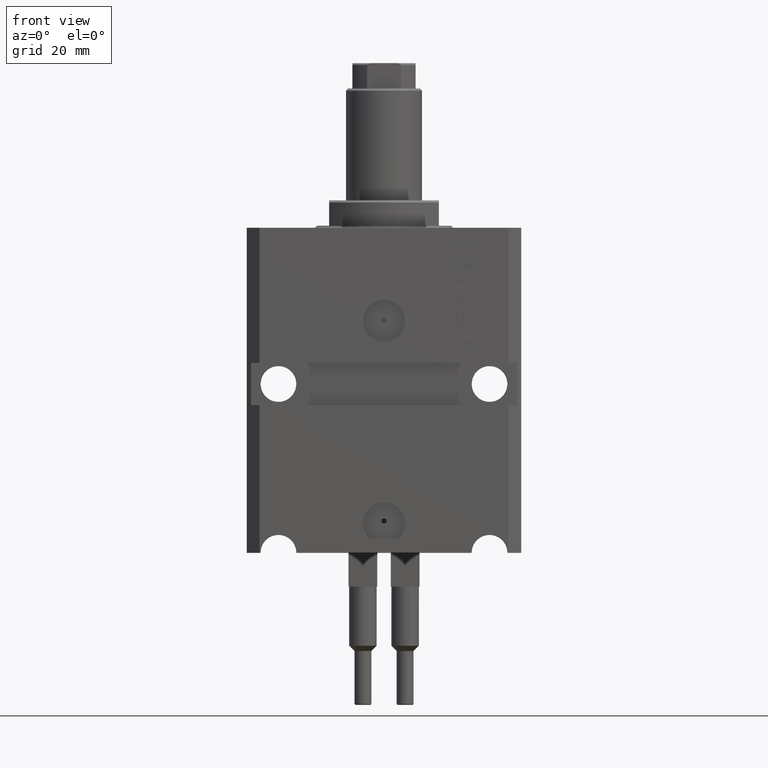
[diagram: clean part render]
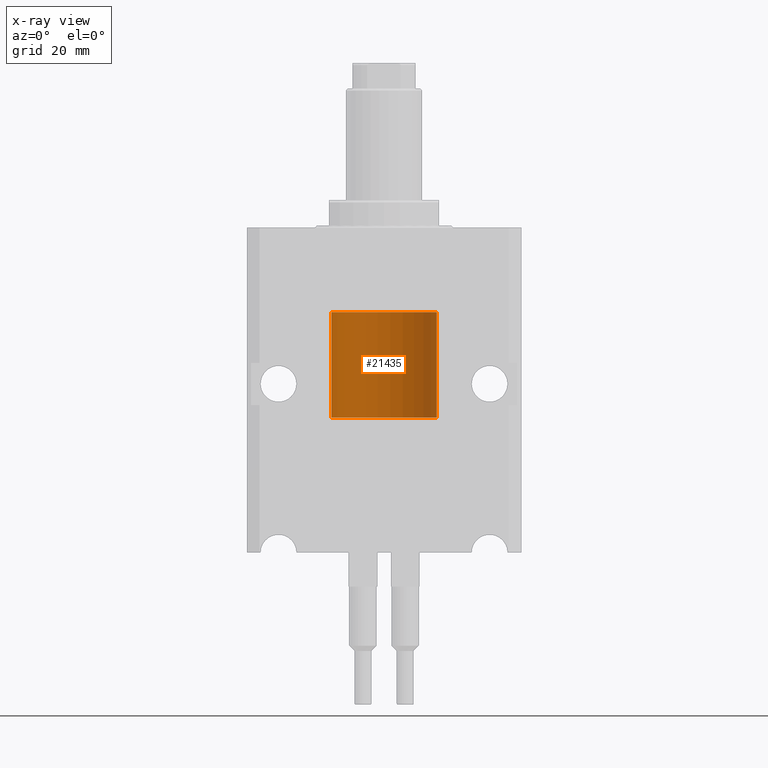
[diagram: x-ray — body ghosted, one internal face saturated and labeled with its STEP entity id]
A machine part, front view, then the same camera in x-ray: the body is ghosted and one INTERNAL B-rep face — a face not visible from any outside direction — is saturated and labeled: STEP entity #21435.
In plain terms, the highlighted cylindrical surface (partial cylindrical patch) has radius 12.5 mm, axis along (-0, -0, -1).
Its self-contained STEP definition (entity closure, byte-faithful):
#2439 = EDGE_CURVE ( 'NONE', #28003, #27764, #12250, .T. ) ;
#2969 = VERTEX_POINT ( 'NONE', #28670 ) ;
#3021 = CARTESIAN_POINT ( 'NONE',  ( -12.50000000000000000, 0.000000000000000000, 0.000000000000000000 ) ) ;
#10274 = EDGE_LOOP ( 'NONE', ( #14824, #28507, #16028, #36499 ) ) ;
#10447 = CARTESIAN_POINT ( 'NONE',  ( 12.50000000000000000, 1.530808498934191521E-15, 25.00000000000000000 ) ) ;
#11169 = CIRCLE ( 'NONE', #24336, 12.50000000000000000 ) ;
#11802 = CARTESIAN_POINT ( 'NONE',  ( -12.50000000000000000, 0.000000000000000000, 25.00000000000000000 ) ) ;
#11948 = FACE_OUTER_BOUND ( 'NONE', #10274, .T. ) ;
#12168 = CYLINDRICAL_SURFACE ( 'NONE', #26522, 12.50000000000000000 ) ;
#12250 = LINE ( 'NONE', #11802, #38550 ) ;
#12390 = DIRECTION ( 'NONE',  ( -1.000000000000000000, 0.000000000000000000, 0.000000000000000000 ) ) ;
#12557 = CARTESIAN_POINT ( 'NONE',  ( 0.000000000000000000, 0.000000000000000000, 0.000000000000000000 ) ) ;
#13572 = CARTESIAN_POINT ( 'NONE',  ( 12.50000000000000000, 1.530808498934191521E-15, 0.000000000000000000 ) ) ;
#14824 = ORIENTED_EDGE ( 'NONE', *, *, #43496, .F. ) ;
#14872 = CARTESIAN_POINT ( 'NONE',  ( -12.50000000000000000, 0.000000000000000000, 25.00000000000000000 ) ) ;
#15767 = DIRECTION ( 'NONE',  ( 1.000000000000000000, 0.000000000000000000, 0.000000000000000000 ) ) ;
#16028 = ORIENTED_EDGE ( 'NONE', *, *, #20695, .T. ) ;
#19210 = EDGE_CURVE ( 'NONE', #2969, #42039, #24880, .T. ) ;
#20695 = EDGE_CURVE ( 'NONE', #42039, #27764, #11169, .T. ) ;
#21435 = ADVANCED_FACE ( 'NONE', ( #11948 ), #12168, .T. ) ;
#22250 = CARTESIAN_POINT ( 'NONE',  ( 0.000000000000000000, 0.000000000000000000, 25.00000000000000000 ) ) ;
#22629 = DIRECTION ( 'NONE',  ( 0.000000000000000000, 0.000000000000000000, 1.000000000000000000 ) ) ;
#24336 = AXIS2_PLACEMENT_3D ( 'NONE', #12557, #22629, #15767 ) ;
#24880 = LINE ( 'NONE', #10447, #35992 ) ;
#25701 = DIRECTION ( 'NONE',  ( -0.000000000000000000, -0.000000000000000000, -1.000000000000000000 ) ) ;
#26522 = AXIS2_PLACEMENT_3D ( 'NONE', #22250, #25701, #12390 ) ;
#27764 = VERTEX_POINT ( 'NONE', #3021 ) ;
#28003 = VERTEX_POINT ( 'NONE', #14872 ) ;
#28094 = DIRECTION ( 'NONE',  ( -0.000000000000000000, -0.000000000000000000, -1.000000000000000000 ) ) ;
#28507 = ORIENTED_EDGE ( 'NONE', *, *, #19210, .T. ) ;
#28670 = CARTESIAN_POINT ( 'NONE',  ( 12.50000000000000000, 1.530808498934191521E-15, 25.00000000000000000 ) ) ;
#32647 = DIRECTION ( 'NONE',  ( -0.000000000000000000, -0.000000000000000000, -1.000000000000000000 ) ) ;
#34767 = CARTESIAN_POINT ( 'NONE',  ( 0.000000000000000000, 0.000000000000000000, 25.00000000000000000 ) ) ;
#35992 = VECTOR ( 'NONE', #28094, 1000.000000000000000 ) ;
#36499 = ORIENTED_EDGE ( 'NONE', *, *, #2439, .F. ) ;
#37319 = AXIS2_PLACEMENT_3D ( 'NONE', #34767, #44645, #37753 ) ;
#37753 = DIRECTION ( 'NONE',  ( 1.000000000000000000, 0.000000000000000000, 0.000000000000000000 ) ) ;
#38550 = VECTOR ( 'NONE', #32647, 1000.000000000000000 ) ;
#42039 = VERTEX_POINT ( 'NONE', #13572 ) ;
#43496 = EDGE_CURVE ( 'NONE', #2969, #28003, #43910, .T. ) ;
#43910 = CIRCLE ( 'NONE', #37319, 12.50000000000000000 ) ;
#44645 = DIRECTION ( 'NONE',  ( 0.000000000000000000, 0.000000000000000000, 1.000000000000000000 ) ) ;